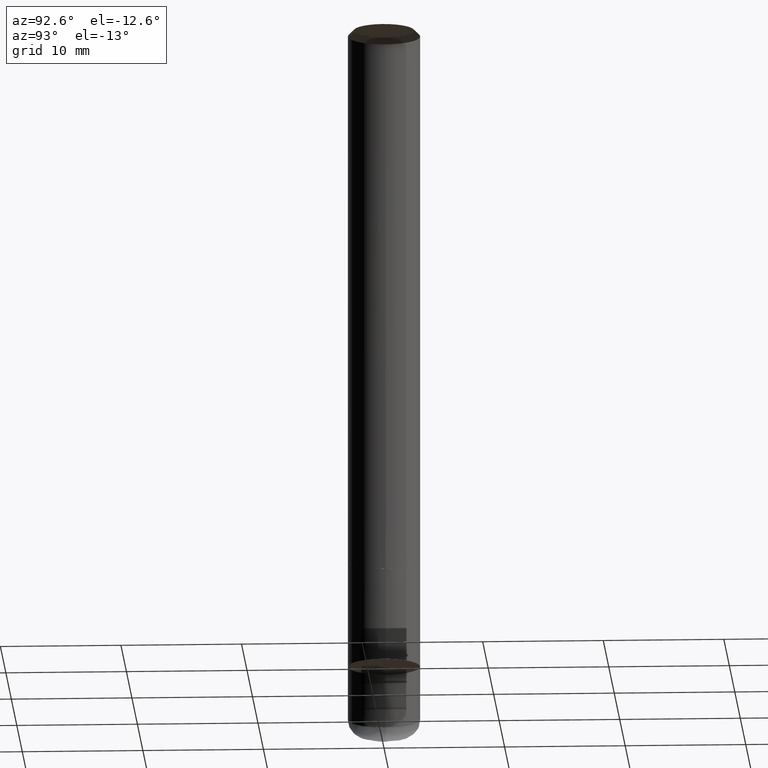
[diagram: clean part render]
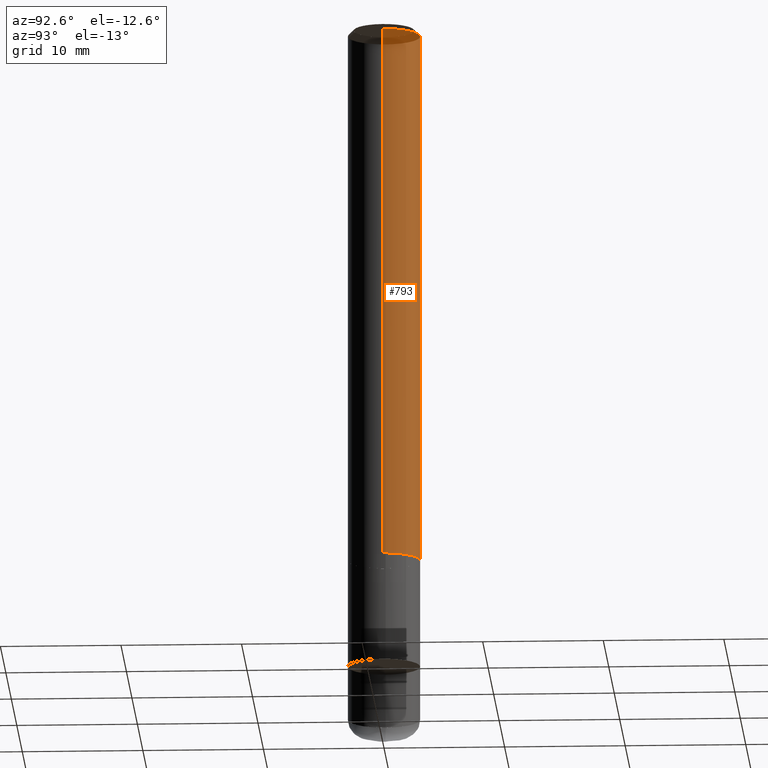
[diagram: same view with one face highlighted and labeled with its STEP entity id]
A machine part, auxiliary view. The second image highlights one B-rep face of the part: STEP entity #793.
In plain terms, the highlighted face is a freeform B-spline surface patch.
Its self-contained STEP definition (entity closure, byte-faithful):
#558=CARTESIAN_POINT('',(3.0,0.0,0.0));
#559=CARTESIAN_POINT('',(3.0,3.0,0.0));
#560=CARTESIAN_POINT('',(0.0,3.0,0.0));
#561=CARTESIAN_POINT('',(-3.0,3.0,0.0));
#562=CARTESIAN_POINT('',(-3.0,0.0,0.0));
#563=CARTESIAN_POINT('',(3.0,0.0,44.5));
#564=CARTESIAN_POINT('',(3.0,3.0,44.5));
#565=CARTESIAN_POINT('',(0.0,3.0,44.5));
#566=CARTESIAN_POINT('',(-3.0,3.0,44.5));
#567=CARTESIAN_POINT('',(-3.0,0.0,44.5));
#774=(
BOUNDED_SURFACE()
B_SPLINE_SURFACE(1,2,(
(#558,#559,#560,#561,#562),
(#563,#564,#565,#566,#567)
), .UNSPECIFIED.,.F.,.F.,.F.)
B_SPLINE_SURFACE_WITH_KNOTS((2,2),(3,2,3),(
0.0,1.0),(
0.0,0.5,1.0), .UNSPECIFIED.)
GEOMETRIC_REPRESENTATION_ITEM()
RATIONAL_B_SPLINE_SURFACE(((1.0,0.707106781187,1.0,0.707106781187,1.0),
(1.0,0.707106781187,1.0,0.707106781187,1.0)
))
REPRESENTATION_ITEM('')
SURFACE()
);
#775=(
BOUNDED_CURVE()
B_SPLINE_CURVE(2,(#563,#564,#565,#566,#567),.UNSPECIFIED.,.F.,.F.)
B_SPLINE_CURVE_WITH_KNOTS((3,2,3),
(0.0,0.5,1.0),.UNSPECIFIED.)
CURVE()
GEOMETRIC_REPRESENTATION_ITEM()
RATIONAL_B_SPLINE_CURVE((1.0,0.707106781187,1.0,0.707106781187,1.0))
REPRESENTATION_ITEM('')
);
#776=(
BOUNDED_CURVE()
B_SPLINE_CURVE(1,(#567,#562),.UNSPECIFIED.,.F.,.F.)
B_SPLINE_CURVE_WITH_KNOTS((2,2),
(0.0,1.0),.UNSPECIFIED.)
CURVE()
GEOMETRIC_REPRESENTATION_ITEM()
RATIONAL_B_SPLINE_CURVE((1.0,1.0))
REPRESENTATION_ITEM('')
);
#777=(
BOUNDED_CURVE()
B_SPLINE_CURVE(2,(#562,#561,#560,#559,#558),.UNSPECIFIED.,.F.,.F.)
B_SPLINE_CURVE_WITH_KNOTS((3,2,3),
(0.0,0.5,1.0),.UNSPECIFIED.)
CURVE()
GEOMETRIC_REPRESENTATION_ITEM()
RATIONAL_B_SPLINE_CURVE((1.0,0.707106781187,1.0,0.707106781187,1.0))
REPRESENTATION_ITEM('')
);
#778=(
BOUNDED_CURVE()
B_SPLINE_CURVE(1,(#558,#563),.UNSPECIFIED.,.F.,.F.)
B_SPLINE_CURVE_WITH_KNOTS((2,2),
(0.0,1.0),.UNSPECIFIED.)
CURVE()
GEOMETRIC_REPRESENTATION_ITEM()
RATIONAL_B_SPLINE_CURVE((1.0,1.0))
REPRESENTATION_ITEM('')
);
#779=VERTEX_POINT('',#558);
#780=VERTEX_POINT('',#562);
#781=VERTEX_POINT('',#563);
#782=VERTEX_POINT('',#567);
#783=EDGE_CURVE('',#781,#782,#775,.T.);
#784=EDGE_CURVE('',#782,#780,#776,.T.);
#785=EDGE_CURVE('',#780,#779,#777,.T.);
#786=EDGE_CURVE('',#779,#781,#778,.T.);
#787=ORIENTED_EDGE('',*,*,#783,.T.);
#788=ORIENTED_EDGE('',*,*,#784,.T.);
#789=ORIENTED_EDGE('',*,*,#785,.T.);
#790=ORIENTED_EDGE('',*,*,#786,.T.);
#791=EDGE_LOOP('',(#787,#788,#789,#790));
#792=FACE_OUTER_BOUND('',#791,.T.);
#793=ADVANCED_FACE('',(#792),#774,.T.);